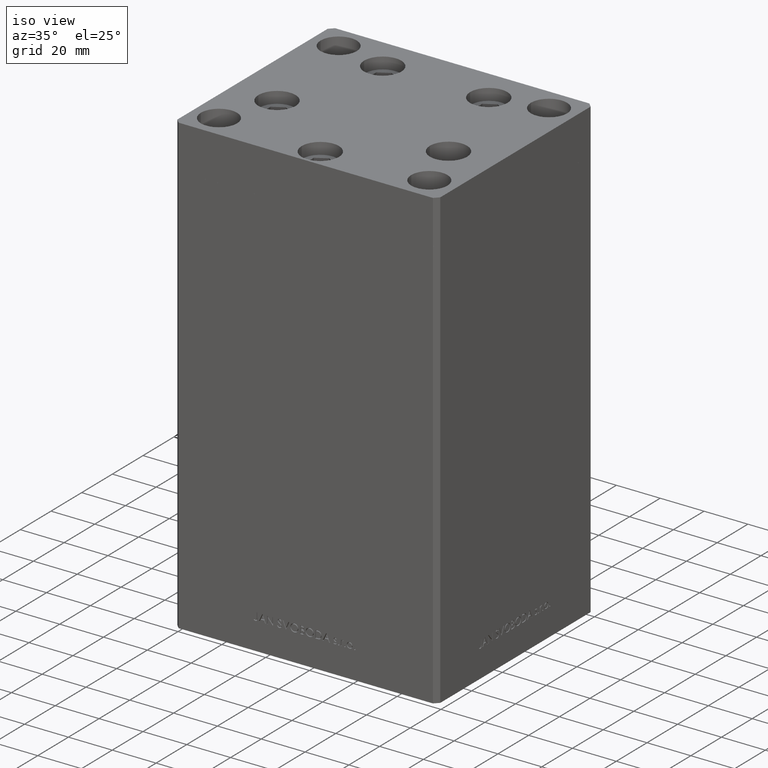
[diagram: clean part render]
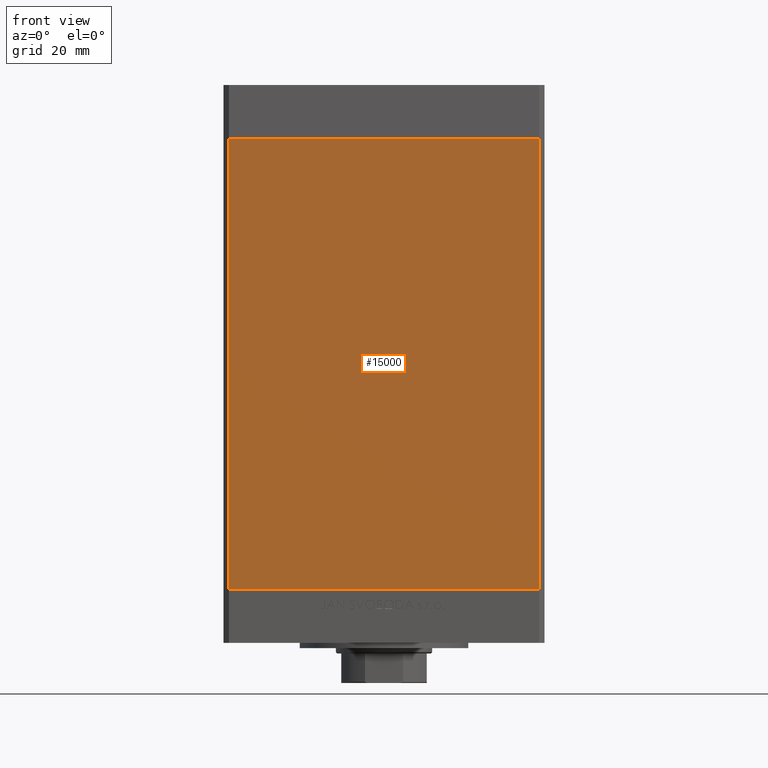
[diagram: tour spotlight — one face highlighted and labeled with its STEP entity id]
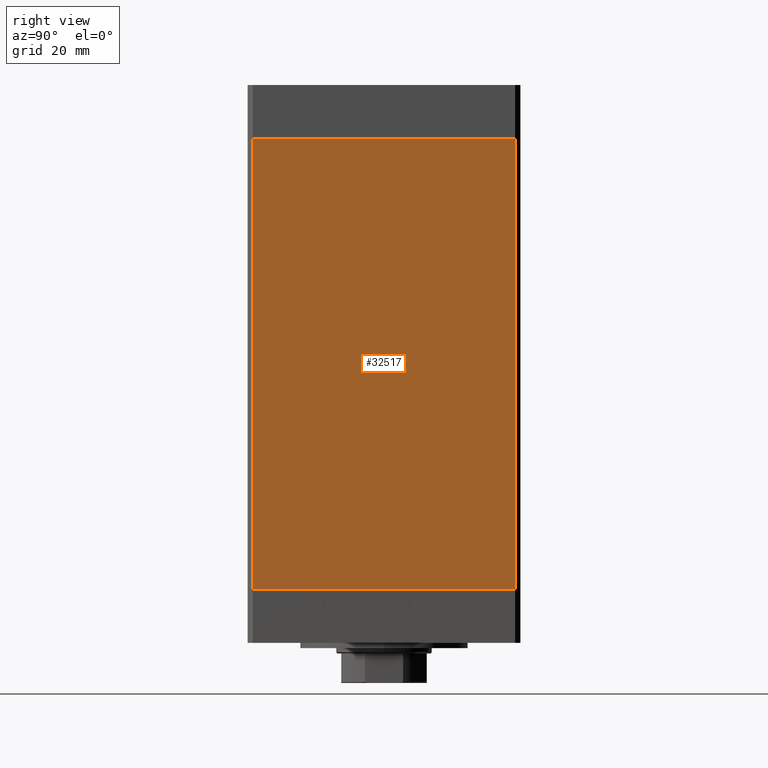
[diagram: tour spotlight — one face highlighted and labeled with its STEP entity id]
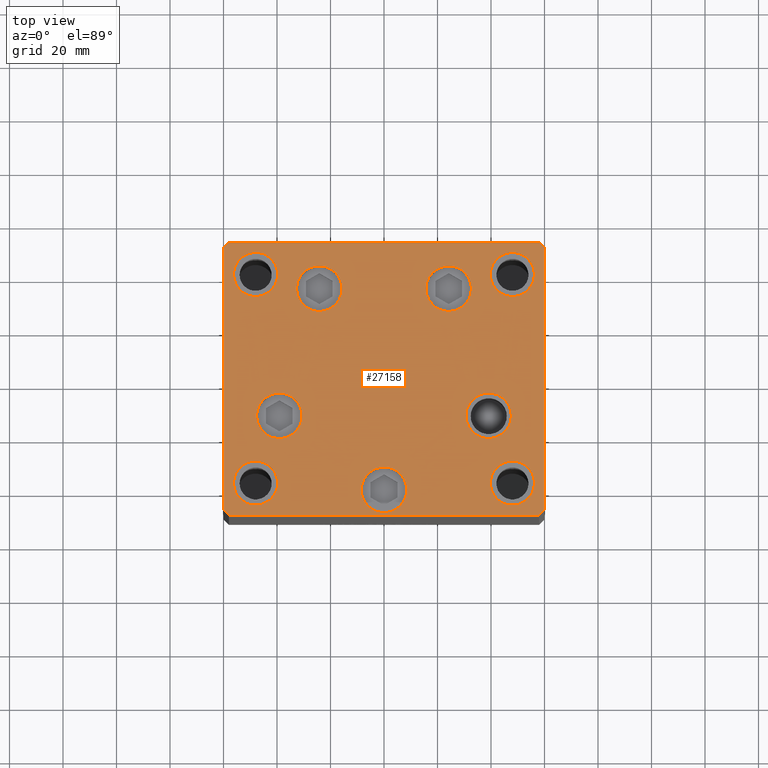
[diagram: tour spotlight — one face highlighted and labeled with its STEP entity id]
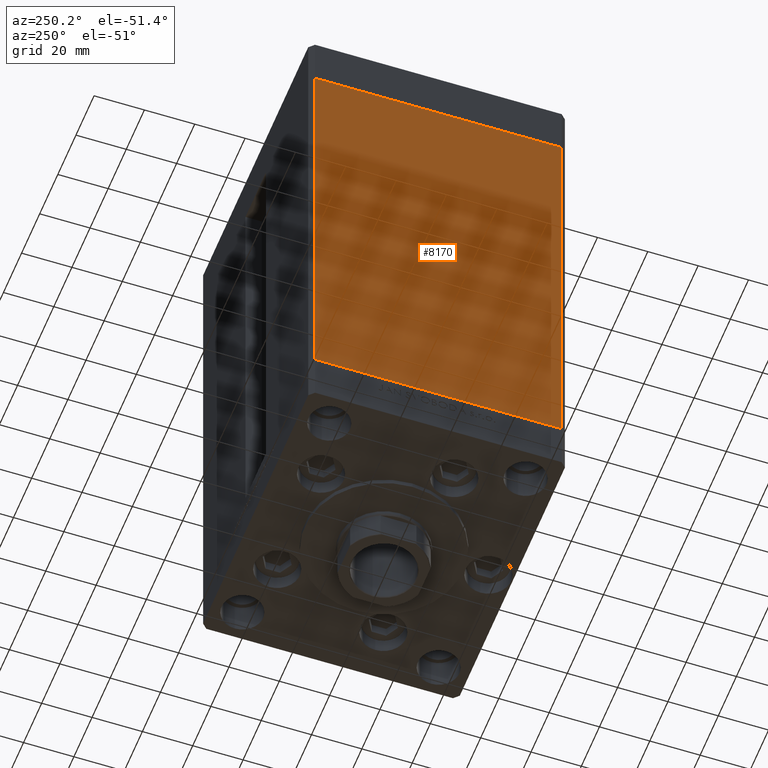
[diagram: tour spotlight — one face highlighted and labeled with its STEP entity id]
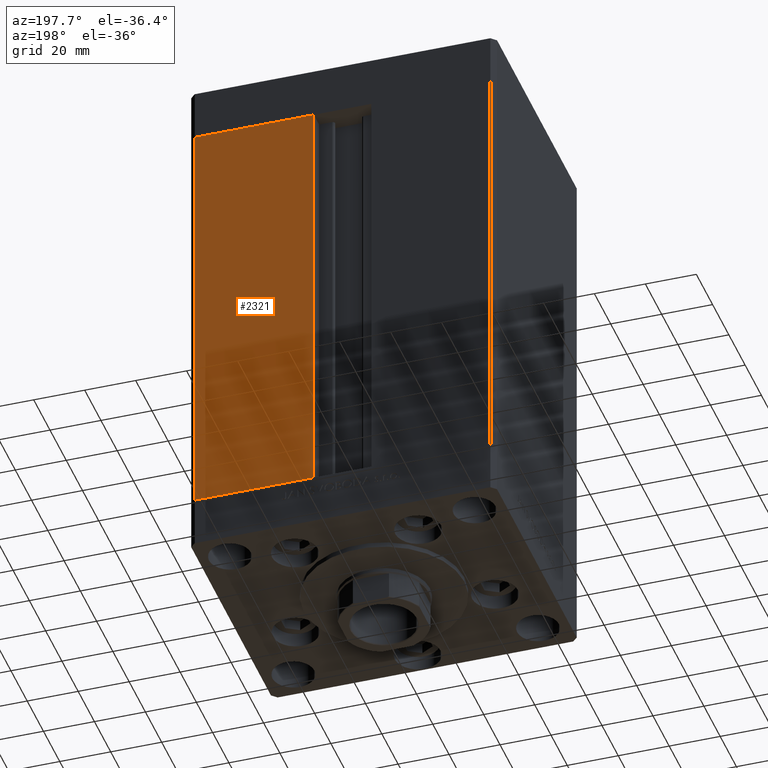
[diagram: tour spotlight — one face highlighted and labeled with its STEP entity id]
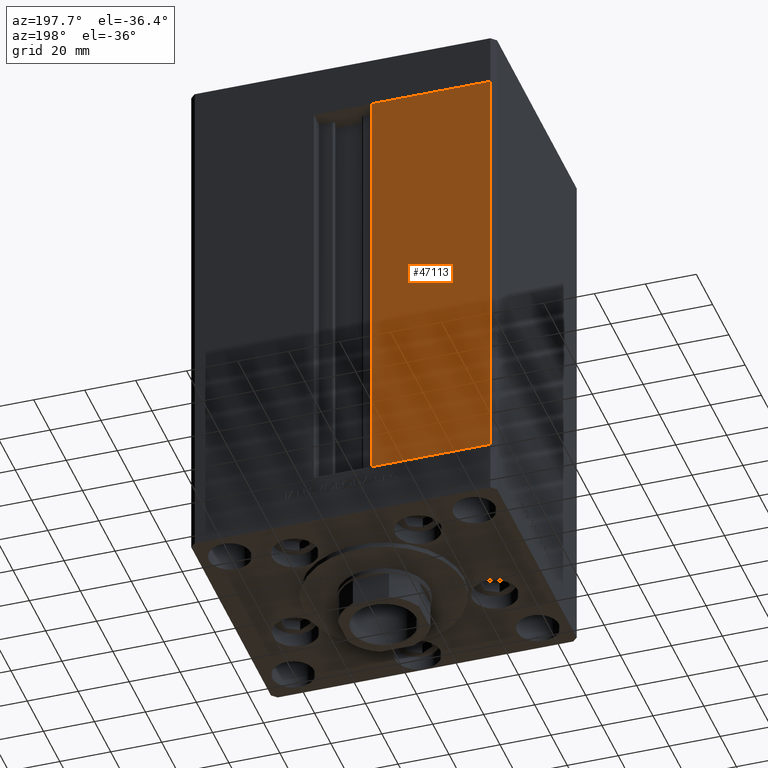
[diagram: tour spotlight — one face highlighted and labeled with its STEP entity id]
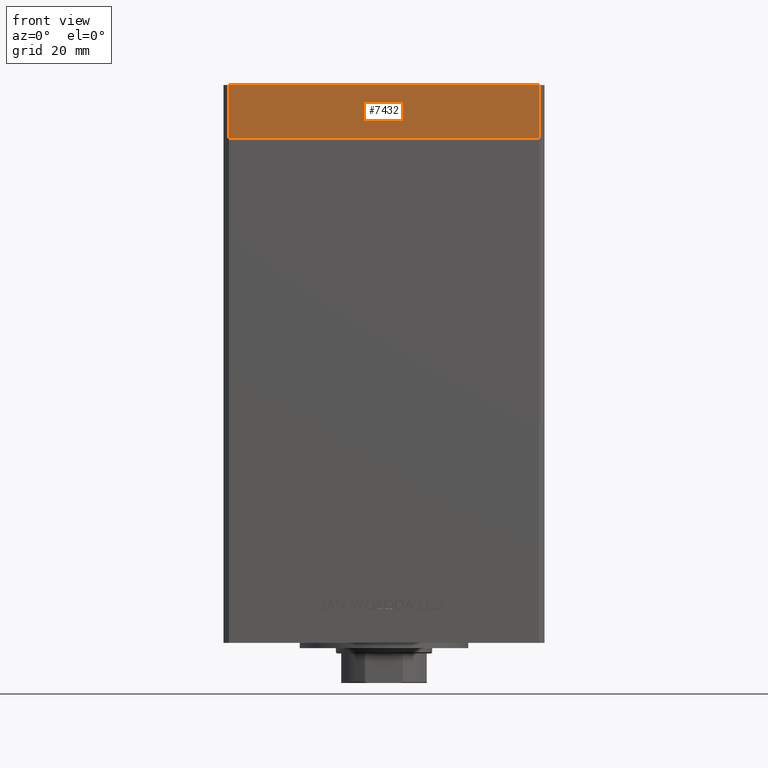
[diagram: tour spotlight — one face highlighted and labeled with its STEP entity id]
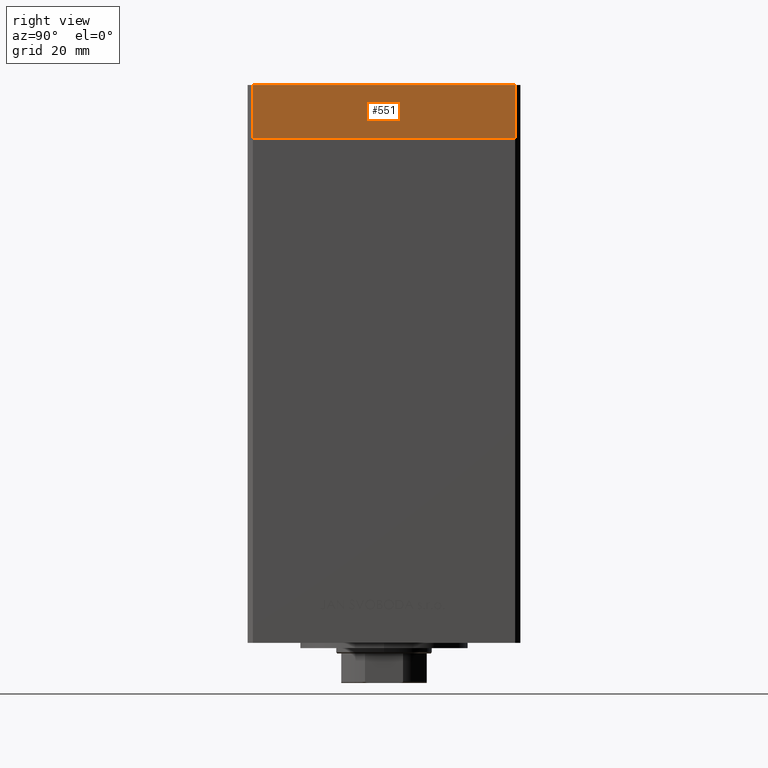
[diagram: tour spotlight — one face highlighted and labeled with its STEP entity id]
A machine part: a face-by-face anatomy tour. The part has 1165 B-rep faces; the first image is the clean iso view, then the 8 largest visible faces are spotlighted one at a time (largest first), each with its STEP entity span.

Face 1 — front view, entity #15000. In plain terms, the highlighted planar face has unit normal (0, 1, 0).
Definition (entity closure, byte-faithful):
#1546 = EDGE_CURVE ( 'NONE', #13663, #22688, #33558, .T. ) ;
#1927 = EDGE_LOOP ( 'NONE', ( #18102, #32888, #40870, #45444 ) ) ;
#3017 = VECTOR ( 'NONE', #46013, 1000.000000000000000 ) ;
#3530 = FACE_OUTER_BOUND ( 'NONE', #1927, .T. ) ;
#8256 = LINE ( 'NONE', #26913, #3017 ) ;
#8895 = VECTOR ( 'NONE', #34272, 1000.000000000000000 ) ;
#9555 = DIRECTION ( 'NONE',  ( 1.000000000000000000, 0.000000000000000000, 0.000000000000000000 ) ) ;
#9831 = VECTOR ( 'NONE', #9555, 1000.000000000000000 ) ;
#10631 = AXIS2_PLACEMENT_3D ( 'NONE', #18954, #18464, #45031 ) ;
#10636 = EDGE_CURVE ( 'NONE', #30562, #13663, #19126, .T. ) ;
#12389 = VECTOR ( 'NONE', #48712, 1000.000000000000000 ) ;
#13663 = VERTEX_POINT ( 'NONE', #33131 ) ;
#15000 = ADVANCED_FACE ( 'NONE', ( #3530 ), #23178, .F. ) ;
#15787 = EDGE_CURVE ( 'NONE', #17224, #22688, #43583, .T. ) ;
#17224 = VERTEX_POINT ( 'NONE', #40546 ) ;
#18102 = ORIENTED_EDGE ( 'NONE', *, *, #15787, .T. ) ;
#18464 = DIRECTION ( 'NONE',  ( 0.000000000000000000, 1.000000000000000000, 0.000000000000000000 ) ) ;
#18954 = CARTESIAN_POINT ( 'NONE',  ( -57.99999999999997868, -51.00000000000000711, 168.5000000000000000 ) ) ;
#19126 = LINE ( 'NONE', #26846, #8895 ) ;
#22688 = VERTEX_POINT ( 'NONE', #39381 ) ;
#22926 = CARTESIAN_POINT ( 'NONE',  ( -57.99999999999997868, -51.00000000000000711, 168.5000000000000000 ) ) ;
#23178 = PLANE ( 'NONE',  #10631 ) ;
#24965 = CARTESIAN_POINT ( 'NONE',  ( -57.99999999999997868, -51.00000000000000711, 0.000000000000000000 ) ) ;
#26846 = CARTESIAN_POINT ( 'NONE',  ( -57.99999999999997868, -51.00000000000000711, 168.5000000000000000 ) ) ;
#26913 = CARTESIAN_POINT ( 'NONE',  ( -57.99999999999997868, -51.00000000000000711, 168.5000000000000000 ) ) ;
#30562 = VERTEX_POINT ( 'NONE', #22926 ) ;
#30623 = EDGE_CURVE ( 'NONE', #30562, #17224, #8256, .T. ) ;
#32888 = ORIENTED_EDGE ( 'NONE', *, *, #1546, .F. ) ;
#33131 = CARTESIAN_POINT ( 'NONE',  ( 57.99999999999997868, -51.00000000000000711, 168.5000000000000000 ) ) ;
#33558 = LINE ( 'NONE', #41497, #12389 ) ;
#34272 = DIRECTION ( 'NONE',  ( 1.000000000000000000, 0.000000000000000000, 0.000000000000000000 ) ) ;
#39381 = CARTESIAN_POINT ( 'NONE',  ( 57.99999999999997868, -51.00000000000000711, 0.000000000000000000 ) ) ;
#40546 = CARTESIAN_POINT ( 'NONE',  ( -57.99999999999997868, -51.00000000000000711, 0.000000000000000000 ) ) ;
#40870 = ORIENTED_EDGE ( 'NONE', *, *, #10636, .F. ) ;
#41497 = CARTESIAN_POINT ( 'NONE',  ( 57.99999999999997868, -51.00000000000000711, 168.5000000000000000 ) ) ;
#43583 = LINE ( 'NONE', #24965, #9831 ) ;
#45031 = DIRECTION ( 'NONE',  ( 0.000000000000000000, -0.000000000000000000, 1.000000000000000000 ) ) ;
#45444 = ORIENTED_EDGE ( 'NONE', *, *, #30623, .T. ) ;
#46013 = DIRECTION ( 'NONE',  ( -0.000000000000000000, -0.000000000000000000, -1.000000000000000000 ) ) ;
#48712 = DIRECTION ( 'NONE',  ( -0.000000000000000000, -0.000000000000000000, -1.000000000000000000 ) ) ;

Face 2 — right view, entity #32517. In plain terms, the highlighted planar face has unit normal (1, -0, 0).
Definition (entity closure, byte-faithful):
#449 = DIRECTION ( 'NONE',  ( -2.832201593431521726E-16, -1.000000000000000000, 0.000000000000000000 ) ) ;
#1815 = VERTEX_POINT ( 'NONE', #33504 ) ;
#2153 = DIRECTION ( 'NONE',  ( -2.832201593431521726E-16, -1.000000000000000000, 0.000000000000000000 ) ) ;
#2171 = DIRECTION ( 'NONE',  ( -0.000000000000000000, -0.000000000000000000, -1.000000000000000000 ) ) ;
#2844 = VERTEX_POINT ( 'NONE', #25160 ) ;
#3022 = CARTESIAN_POINT ( 'NONE',  ( 60.00000000000001421, 49.00000000000000000, 168.5000000000000000 ) ) ;
#4290 = EDGE_CURVE ( 'NONE', #17449, #40359, #23798, .T. ) ;
#5770 = CARTESIAN_POINT ( 'NONE',  ( 59.99999999999998579, -49.00000000000000000, 0.000000000000000000 ) ) ;
#5903 = CARTESIAN_POINT ( 'NONE',  ( 59.99999999999998579, -49.00000000000000000, 168.5000000000000000 ) ) ;
#8783 = CARTESIAN_POINT ( 'NONE',  ( 60.00000000000001421, 49.00000000000000000, 168.5000000000000000 ) ) ;
#10731 = LINE ( 'NONE', #3022, #13330 ) ;
#11397 = LINE ( 'NONE', #48921, #38134 ) ;
#13330 = VECTOR ( 'NONE', #17964, 1000.000000000000000 ) ;
#13501 = ORIENTED_EDGE ( 'NONE', *, *, #19144, .T. ) ;
#13667 = CARTESIAN_POINT ( 'NONE',  ( 60.00000000000001421, 49.00000000000000000, 0.000000000000000000 ) ) ;
#13807 = VECTOR ( 'NONE', #2171, 1000.000000000000000 ) ;
#16492 = PLANE ( 'NONE',  #26040 ) ;
#16735 = DIRECTION ( 'NONE',  ( 1.000000000000000000, -2.832201593431521726E-16, 0.000000000000000000 ) ) ;
#17449 = VERTEX_POINT ( 'NONE', #13667 ) ;
#17473 = EDGE_LOOP ( 'NONE', ( #43202, #20560, #28884, #13501 ) ) ;
#17964 = DIRECTION ( 'NONE',  ( -0.000000000000000000, -0.000000000000000000, -1.000000000000000000 ) ) ;
#19144 = EDGE_CURVE ( 'NONE', #2844, #40359, #28537, .T. ) ;
#20560 = ORIENTED_EDGE ( 'NONE', *, *, #32706, .F. ) ;
#23798 = LINE ( 'NONE', #39923, #45006 ) ;
#25160 = CARTESIAN_POINT ( 'NONE',  ( 59.99999999999998579, -49.00000000000000000, 168.5000000000000000 ) ) ;
#26040 = AXIS2_PLACEMENT_3D ( 'NONE', #8783, #16735, #47038 ) ;
#27922 = FACE_OUTER_BOUND ( 'NONE', #17473, .T. ) ;
#28537 = LINE ( 'NONE', #5903, #13807 ) ;
#28884 = ORIENTED_EDGE ( 'NONE', *, *, #47890, .T. ) ;
#32517 = ADVANCED_FACE ( 'NONE', ( #27922 ), #16492, .T. ) ;
#32706 = EDGE_CURVE ( 'NONE', #1815, #17449, #10731, .T. ) ;
#33504 = CARTESIAN_POINT ( 'NONE',  ( 60.00000000000001421, 49.00000000000000000, 168.5000000000000000 ) ) ;
#38134 = VECTOR ( 'NONE', #449, 1000.000000000000000 ) ;
#39923 = CARTESIAN_POINT ( 'NONE',  ( 60.00000000000001421, 49.00000000000000000, 0.000000000000000000 ) ) ;
#40359 = VERTEX_POINT ( 'NONE', #5770 ) ;
#43202 = ORIENTED_EDGE ( 'NONE', *, *, #4290, .F. ) ;
#45006 = VECTOR ( 'NONE', #2153, 1000.000000000000000 ) ;
#47038 = DIRECTION ( 'NONE',  ( 2.832201593431521726E-16, 1.000000000000000000, 0.000000000000000000 ) ) ;
#47890 = EDGE_CURVE ( 'NONE', #1815, #2844, #11397, .T. ) ;
#48921 = CARTESIAN_POINT ( 'NONE',  ( 60.00000000000001421, 49.00000000000000000, 168.5000000000000000 ) ) ;

Face 3 — top view, entity #27158. In plain terms, the highlighted planar face has unit normal (0, 0, 1).
Definition (entity closure, byte-faithful):
#327 = CARTESIAN_POINT ( 'NONE',  ( -48.00000000000000000, 39.00000000000000000, 0.000000000000000000 ) ) ;
#429 = CARTESIAN_POINT ( 'NONE',  ( -39.12657522565562829, -13.83333333333333925, 0.000000000000000000 ) ) ;
#554 = EDGE_CURVE ( 'NONE', #24148, #46308, #21906, .T. ) ;
#588 = ORIENTED_EDGE ( 'NONE', *, *, #929, .F. ) ;
#732 = CIRCLE ( 'NONE', #45173, 8.500000000000000000 ) ;
#929 = EDGE_CURVE ( 'NONE', #17154, #14910, #40971, .T. ) ;
#987 = EDGE_CURVE ( 'NONE', #8961, #38831, #10483, .T. ) ;
#1550 = DIRECTION ( 'NONE',  ( 1.000000000000000000, 0.000000000000000000, 0.000000000000000000 ) ) ;
#1555 = EDGE_LOOP ( 'NONE', ( #49000, #3449 ) ) ;
#1556 = LINE ( 'NONE', #35600, #2978 ) ;
#1891 = CARTESIAN_POINT ( 'NONE',  ( 59.99999999999994316, 49.00000000000000000, 0.000000000000000000 ) ) ;
#2213 = VERTEX_POINT ( 'NONE', #22519 ) ;
#2378 = CARTESIAN_POINT ( 'NONE',  ( -48.00000000000000000, 39.00000000000000000, 0.000000000000000000 ) ) ;
#2978 = VECTOR ( 'NONE', #47029, 1000.000000000000114 ) ;
#3222 = FACE_OUTER_BOUND ( 'NONE', #33866, .T. ) ;
#3271 = VERTEX_POINT ( 'NONE', #13302 ) ;
#3449 = ORIENTED_EDGE ( 'NONE', *, *, #33112, .T. ) ;
#3716 = EDGE_CURVE ( 'NONE', #11319, #8961, #1556, .T. ) ;
#3721 = DIRECTION ( 'NONE',  ( 0.000000000000000000, -0.000000000000000000, -1.000000000000000000 ) ) ;
#4539 = ORIENTED_EDGE ( 'NONE', *, *, #16953, .T. ) ;
#4625 = CIRCLE ( 'NONE', #48261, 8.499999999999992895 ) ;
#4804 = ORIENTED_EDGE ( 'NONE', *, *, #42558, .T. ) ;
#5037 = CARTESIAN_POINT ( 'NONE',  ( 39.75000000000000711, 38.99999999999999289, 0.000000000000000000 ) ) ;
#5113 = CARTESIAN_POINT ( 'NONE',  ( -39.75000000000000711, -39.00000000000000000, 0.000000000000000000 ) ) ;
#5239 = CARTESIAN_POINT ( 'NONE',  ( -32.69288941894912170, 33.71875000000000000, 0.000000000000000000 ) ) ;
#5327 = CARTESIAN_POINT ( 'NONE',  ( 30.62657522565563184, -13.83333333333332860, 0.000000000000000000 ) ) ;
#5492 = VECTOR ( 'NONE', #14049, 1000.000000000000114 ) ;
#5905 = EDGE_LOOP ( 'NONE', ( #6623, #45217 ) ) ;
#6048 = AXIS2_PLACEMENT_3D ( 'NONE', #11386, #26326, #41450 ) ;
#6322 = AXIS2_PLACEMENT_3D ( 'NONE', #18266, #33418, #48569 ) ;
#6534 = EDGE_CURVE ( 'NONE', #39867, #28114, #27018, .T. ) ;
#6621 = ORIENTED_EDGE ( 'NONE', *, *, #554, .T. ) ;
#6623 = ORIENTED_EDGE ( 'NONE', *, *, #6534, .T. ) ;
#6793 = CIRCLE ( 'NONE', #25861, 8.249999999999992895 ) ;
#6904 = DIRECTION ( 'NONE',  ( 0.000000000000000000, 0.000000000000000000, 1.000000000000000000 ) ) ;
#6965 = FACE_BOUND ( 'NONE', #29604, .T. ) ;
#7008 = CARTESIAN_POINT ( 'NONE',  ( 8.500000000000005329, -41.50000000000000000, 0.000000000000000000 ) ) ;
#7049 = ORIENTED_EDGE ( 'NONE', *, *, #23092, .F. ) ;
#7205 = DIRECTION ( 'NONE',  ( 1.000000000000000000, 0.000000000000000000, 0.000000000000000000 ) ) ;
#7363 = CARTESIAN_POINT ( 'NONE',  ( 56.24999999999999289, -38.99999999999999289, 0.000000000000000000 ) ) ;
#8140 = CARTESIAN_POINT ( 'NONE',  ( -60.00000000000000000, 48.99999999999995737, 0.000000000000000000 ) ) ;
#8190 = CARTESIAN_POINT ( 'NONE',  ( 5.082284216461515748E-15, -41.50000000000000000, 0.000000000000000000 ) ) ;
#8927 = ORIENTED_EDGE ( 'NONE', *, *, #987, .T. ) ;
#8961 = VERTEX_POINT ( 'NONE', #42950 ) ;
#10086 = DIRECTION ( 'NONE',  ( 0.000000000000000000, -0.000000000000000000, -1.000000000000000000 ) ) ;
#10483 = LINE ( 'NONE', #36585, #36196 ) ;
#10686 = DIRECTION ( 'NONE',  ( -7.080503983578803823E-16, 1.000000000000000000, 0.000000000000000000 ) ) ;
#10799 = DIRECTION ( 'NONE',  ( 1.000000000000000000, 0.000000000000000000, 0.000000000000000000 ) ) ;
#10931 = DIRECTION ( 'NONE',  ( 1.000000000000000000, 0.000000000000000000, 0.000000000000000000 ) ) ;
#10952 = VECTOR ( 'NONE', #45358, 1000.000000000000114 ) ;
#10978 = EDGE_LOOP ( 'NONE', ( #16549, #45738 ) ) ;
#10999 = DIRECTION ( 'NONE',  ( 1.000000000000000000, 0.000000000000000000, 0.000000000000000000 ) ) ;
#11061 = CIRCLE ( 'NONE', #6322, 8.500000000000000000 ) ;
#11110 = DIRECTION ( 'NONE',  ( 1.000000000000000000, 0.000000000000000000, 0.000000000000000000 ) ) ;
#11177 = FACE_BOUND ( 'NONE', #21808, .T. ) ;
#11319 = VERTEX_POINT ( 'NONE', #18162 ) ;
#11321 = CARTESIAN_POINT ( 'NONE',  ( 59.99999999999994316, 49.00000000000000000, 0.000000000000000000 ) ) ;
#11386 = CARTESIAN_POINT ( 'NONE',  ( 24.19288941894911460, 33.71875000000000711, 0.000000000000000000 ) ) ;
#11596 = CARTESIAN_POINT ( 'NONE',  ( 5.082284216461515748E-15, -41.50000000000000000, 0.000000000000000000 ) ) ;
#11746 = CARTESIAN_POINT ( 'NONE',  ( -39.75000000000000711, 39.00000000000000000, 0.000000000000000000 ) ) ;
#11850 = DIRECTION ( 'NONE',  ( 0.000000000000000000, -0.000000000000000000, -1.000000000000000000 ) ) ;
#11879 = DIRECTION ( 'NONE',  ( 1.000000000000000000, 0.000000000000000000, 0.000000000000000000 ) ) ;
#11923 = CARTESIAN_POINT ( 'NONE',  ( 48.00000000000000000, 38.99999999999999289, 0.000000000000000000 ) ) ;
#12000 = VERTEX_POINT ( 'NONE', #1891 ) ;
#12683 = EDGE_CURVE ( 'NONE', #32544, #48499, #26431, .T. ) ;
#12737 = DIRECTION ( 'NONE',  ( 1.000000000000000000, 0.000000000000000000, 0.000000000000000000 ) ) ;
#12859 = ORIENTED_EDGE ( 'NONE', *, *, #34803, .T. ) ;
#13231 = DIRECTION ( 'NONE',  ( 0.000000000000000000, 0.000000000000000000, 1.000000000000000000 ) ) ;
#13302 = CARTESIAN_POINT ( 'NONE',  ( -56.24999999999999289, 39.00000000000000000, 0.000000000000000000 ) ) ;
#13655 = ORIENTED_EDGE ( 'NONE', *, *, #34061, .F. ) ;
#14049 = DIRECTION ( 'NONE',  ( -0.7071067811865451302, -0.7071067811865500152, 0.000000000000000000 ) ) ;
#14193 = FACE_BOUND ( 'NONE', #1555, .T. ) ;
#14313 = VECTOR ( 'NONE', #45397, 1000.000000000000000 ) ;
#14545 = CARTESIAN_POINT ( 'NONE',  ( 15.69288941894910927, 33.71875000000000711, 0.000000000000000000 ) ) ;
#14639 = CIRCLE ( 'NONE', #15463, 8.500000000000000000 ) ;
#14910 = VERTEX_POINT ( 'NONE', #5113 ) ;
#14923 = DIRECTION ( 'NONE',  ( 0.000000000000000000, 0.000000000000000000, 1.000000000000000000 ) ) ;
#15071 = LINE ( 'NONE', #19285, #10952 ) ;
#15073 = ORIENTED_EDGE ( 'NONE', *, *, #33358, .T. ) ;
#15117 = AXIS2_PLACEMENT_3D ( 'NONE', #26956, #42089, #42815 ) ;
#15119 = VERTEX_POINT ( 'NONE', #5239 ) ;
#15463 = AXIS2_PLACEMENT_3D ( 'NONE', #37768, #3721, #27884 ) ;
#15539 = CARTESIAN_POINT ( 'NONE',  ( -15.69288941894911993, 33.71875000000000000, 0.000000000000000000 ) ) ;
#16235 = EDGE_CURVE ( 'NONE', #24456, #20328, #47004, .T. ) ;
#16504 = AXIS2_PLACEMENT_3D ( 'NONE', #327, #30657, #45554 ) ;
#16549 = ORIENTED_EDGE ( 'NONE', *, *, #37235, .F. ) ;
#16721 = ORIENTED_EDGE ( 'NONE', *, *, #36871, .T. ) ;
#16723 = CARTESIAN_POINT ( 'NONE',  ( -48.00000000000000000, -39.00000000000000000, 0.000000000000000000 ) ) ;
#16953 = EDGE_CURVE ( 'NONE', #12000, #24456, #48842, .T. ) ;
#17065 = CARTESIAN_POINT ( 'NONE',  ( 39.12657522565562829, -13.83333333333332860, 0.000000000000000000 ) ) ;
#17154 = VERTEX_POINT ( 'NONE', #21908 ) ;
#17316 = DIRECTION ( 'NONE',  ( 1.000000000000000000, 0.000000000000000000, 0.000000000000000000 ) ) ;
#17324 = ORIENTED_EDGE ( 'NONE', *, *, #45237, .T. ) ;
#17353 = AXIS2_PLACEMENT_3D ( 'NONE', #8190, #23349, #7205 ) ;
#17467 = AXIS2_PLACEMENT_3D ( 'NONE', #49015, #34344, #10999 ) ;
#17801 = VERTEX_POINT ( 'NONE', #7363 ) ;
#18162 = CARTESIAN_POINT ( 'NONE',  ( -60.00000000000000000, -49.00000000000000000, 0.000000000000000000 ) ) ;
#18163 = FACE_BOUND ( 'NONE', #48111, .T. ) ;
#18266 = CARTESIAN_POINT ( 'NONE',  ( -24.19288941894912170, 33.71875000000000000, 0.000000000000000000 ) ) ;
#18781 = VECTOR ( 'NONE', #10686, 1000.000000000000000 ) ;
#19285 = CARTESIAN_POINT ( 'NONE',  ( 58.00000000000000000, -51.00000000000000711, 0.000000000000000000 ) ) ;
#19938 = DIRECTION ( 'NONE',  ( -1.000000000000000000, -2.392722035830079958E-16, 0.000000000000000000 ) ) ;
#20328 = VERTEX_POINT ( 'NONE', #25496 ) ;
#21122 = EDGE_CURVE ( 'NONE', #46308, #24148, #14639, .T. ) ;
#21443 = CIRCLE ( 'NONE', #17467, 8.500000000000000000 ) ;
#21808 = EDGE_LOOP ( 'NONE', ( #23690, #588 ) ) ;
#21884 = ORIENTED_EDGE ( 'NONE', *, *, #27051, .T. ) ;
#21906 = CIRCLE ( 'NONE', #6048, 8.500000000000000000 ) ;
#21908 = CARTESIAN_POINT ( 'NONE',  ( -56.24999999999999289, -39.00000000000000000, 0.000000000000000000 ) ) ;
#21909 = ORIENTED_EDGE ( 'NONE', *, *, #12683, .F. ) ;
#21990 = CIRCLE ( 'NONE', #41009, 8.249999999999992895 ) ;
#22011 = CIRCLE ( 'NONE', #44232, 8.500000000000000000 ) ;
#22519 = CARTESIAN_POINT ( 'NONE',  ( -30.62657522565562829, -13.83333333333333748, 0.000000000000000000 ) ) ;
#22552 = CARTESIAN_POINT ( 'NONE',  ( -48.00000000000000000, -39.00000000000000000, 0.000000000000000000 ) ) ;
#22622 = CARTESIAN_POINT ( 'NONE',  ( 58.00000000000000000, -51.00000000000000711, 0.000000000000000000 ) ) ;
#22741 = CARTESIAN_POINT ( 'NONE',  ( -60.00000000000000000, 48.99999999999995737, 0.000000000000000000 ) ) ;
#22869 = ORIENTED_EDGE ( 'NONE', *, *, #21122, .T. ) ;
#23092 = EDGE_CURVE ( 'NONE', #48499, #32544, #6793, .T. ) ;
#23349 = DIRECTION ( 'NONE',  ( 0.000000000000000000, -0.000000000000000000, -1.000000000000000000 ) ) ;
#23690 = ORIENTED_EDGE ( 'NONE', *, *, #26246, .F. ) ;
#23774 = DIRECTION ( 'NONE',  ( 1.000000000000000000, 0.000000000000000000, 0.000000000000000000 ) ) ;
#24148 = VERTEX_POINT ( 'NONE', #41443 ) ;
#24456 = VERTEX_POINT ( 'NONE', #34186 ) ;
#25129 = LINE ( 'NONE', #40278, #18781 ) ;
#25132 = CIRCLE ( 'NONE', #43340, 8.500000000000000000 ) ;
#25496 = CARTESIAN_POINT ( 'NONE',  ( -57.99999999999999289, 50.99999999999997868, 0.000000000000000000 ) ) ;
#25810 = CARTESIAN_POINT ( 'NONE',  ( 48.00000000000000000, -38.99999999999999289, 0.000000000000000000 ) ) ;
#25861 = AXIS2_PLACEMENT_3D ( 'NONE', #27907, #35106, #1550 ) ;
#26111 = DIRECTION ( 'NONE',  ( 1.000000000000000000, 0.000000000000000000, 0.000000000000000000 ) ) ;
#26246 = EDGE_CURVE ( 'NONE', #14910, #17154, #21990, .T. ) ;
#26316 = ORIENTED_EDGE ( 'NONE', *, *, #3716, .T. ) ;
#26326 = DIRECTION ( 'NONE',  ( 0.000000000000000000, -0.000000000000000000, -1.000000000000000000 ) ) ;
#26431 = CIRCLE ( 'NONE', #36740, 8.249999999999992895 ) ;
#26840 = CARTESIAN_POINT ( 'NONE',  ( 56.24999999999999289, 38.99999999999999289, 0.000000000000000000 ) ) ;
#26949 = VERTEX_POINT ( 'NONE', #43756 ) ;
#26956 = CARTESIAN_POINT ( 'NONE',  ( 39.12657522565562829, -13.83333333333332860, 0.000000000000000000 ) ) ;
#27018 = CIRCLE ( 'NONE', #15117, 8.499999999999992895 ) ;
#27051 = EDGE_CURVE ( 'NONE', #42359, #12000, #25129, .T. ) ;
#27158 = ADVANCED_FACE ( 'NONE', ( #40995, #48463, #37512, #14193, #18163, #34041, #11177, #29587, #6965, #3222 ), #48699, .T. ) ;
#27620 = DIRECTION ( 'NONE',  ( 1.000000000000000000, 0.000000000000000000, 0.000000000000000000 ) ) ;
#27709 = ORIENTED_EDGE ( 'NONE', *, *, #32860, .F. ) ;
#27884 = DIRECTION ( 'NONE',  ( 1.000000000000000000, 0.000000000000000000, 0.000000000000000000 ) ) ;
#27907 = CARTESIAN_POINT ( 'NONE',  ( 48.00000000000000000, 38.99999999999999289, 0.000000000000000000 ) ) ;
#28114 = VERTEX_POINT ( 'NONE', #33309 ) ;
#28137 = CARTESIAN_POINT ( 'NONE',  ( 57.99999999999993605, 51.00000000000000711, 0.000000000000000000 ) ) ;
#29587 = FACE_BOUND ( 'NONE', #10978, .T. ) ;
#29604 = EDGE_LOOP ( 'NONE', ( #7049, #21909 ) ) ;
#29750 = EDGE_CURVE ( 'NONE', #43774, #43671, #30812, .T. ) ;
#29822 = CARTESIAN_POINT ( 'NONE',  ( 0.000000000000000000, 0.000000000000000000, 0.000000000000000000 ) ) ;
#29873 = AXIS2_PLACEMENT_3D ( 'NONE', #25810, #6904, #47673 ) ;
#30199 = EDGE_CURVE ( 'NONE', #28114, #39867, #4625, .T. ) ;
#30242 = EDGE_LOOP ( 'NONE', ( #22869, #6621 ) ) ;
#30657 = DIRECTION ( 'NONE',  ( 0.000000000000000000, 0.000000000000000000, 1.000000000000000000 ) ) ;
#30766 = DIRECTION ( 'NONE',  ( 0.000000000000000000, -0.000000000000000000, -1.000000000000000000 ) ) ;
#30812 = CIRCLE ( 'NONE', #17353, 8.500000000000000000 ) ;
#31100 = CARTESIAN_POINT ( 'NONE',  ( 48.00000000000000000, -38.99999999999999289, 0.000000000000000000 ) ) ;
#31484 = AXIS2_PLACEMENT_3D ( 'NONE', #29822, #44958, #26111 ) ;
#31540 = CIRCLE ( 'NONE', #44157, 8.249999999999992895 ) ;
#32071 = DIRECTION ( 'NONE',  ( 0.000000000000000000, 0.000000000000000000, 1.000000000000000000 ) ) ;
#32544 = VERTEX_POINT ( 'NONE', #5037 ) ;
#32860 = EDGE_CURVE ( 'NONE', #26949, #17801, #41080, .T. ) ;
#33034 = DIRECTION ( 'NONE',  ( 0.000000000000000000, -0.000000000000000000, -1.000000000000000000 ) ) ;
#33112 = EDGE_CURVE ( 'NONE', #43671, #43774, #732, .T. ) ;
#33309 = CARTESIAN_POINT ( 'NONE',  ( 47.62657522565562118, -13.83333333333332682, 0.000000000000000000 ) ) ;
#33358 = EDGE_CURVE ( 'NONE', #15119, #38309, #11061, .T. ) ;
#33418 = DIRECTION ( 'NONE',  ( 0.000000000000000000, -0.000000000000000000, -1.000000000000000000 ) ) ;
#33866 = EDGE_LOOP ( 'NONE', ( #26316, #8927, #4804, #21884, #4539, #49116, #17324, #34169 ) ) ;
#34041 = FACE_BOUND ( 'NONE', #47871, .T. ) ;
#34061 = EDGE_CURVE ( 'NONE', #17801, #26949, #40965, .T. ) ;
#34169 = ORIENTED_EDGE ( 'NONE', *, *, #46879, .T. ) ;
#34186 = CARTESIAN_POINT ( 'NONE',  ( 57.99999999999993605, 51.00000000000000711, 0.000000000000000000 ) ) ;
#34344 = DIRECTION ( 'NONE',  ( 0.000000000000000000, -0.000000000000000000, -1.000000000000000000 ) ) ;
#34471 = VECTOR ( 'NONE', #44861, 1000.000000000000000 ) ;
#34630 = AXIS2_PLACEMENT_3D ( 'NONE', #16723, #13231, #12737 ) ;
#34665 = ORIENTED_EDGE ( 'NONE', *, *, #47617, .T. ) ;
#34803 = EDGE_CURVE ( 'NONE', #45529, #2213, #25132, .T. ) ;
#35106 = DIRECTION ( 'NONE',  ( 0.000000000000000000, 0.000000000000000000, 1.000000000000000000 ) ) ;
#35600 = CARTESIAN_POINT ( 'NONE',  ( -60.00000000000000000, -49.00000000000000000, 0.000000000000000000 ) ) ;
#36196 = VECTOR ( 'NONE', #44517, 1000.000000000000000 ) ;
#36279 = CARTESIAN_POINT ( 'NONE',  ( -39.12657522565562829, -13.83333333333333925, 0.000000000000000000 ) ) ;
#36355 = EDGE_LOOP ( 'NONE', ( #15073, #34665 ) ) ;
#36585 = CARTESIAN_POINT ( 'NONE',  ( -57.99999999999997868, -51.00000000000001421, 0.000000000000000000 ) ) ;
#36740 = AXIS2_PLACEMENT_3D ( 'NONE', #11923, #14923, #10931 ) ;
#36871 = EDGE_CURVE ( 'NONE', #2213, #45529, #22011, .T. ) ;
#37235 = EDGE_CURVE ( 'NONE', #39503, #3271, #31540, .T. ) ;
#37512 = FACE_BOUND ( 'NONE', #5905, .T. ) ;
#37768 = CARTESIAN_POINT ( 'NONE',  ( 24.19288941894911460, 33.71875000000000711, 0.000000000000000000 ) ) ;
#38046 = CARTESIAN_POINT ( 'NONE',  ( -8.499999999999994671, -41.50000000000000000, 0.000000000000000000 ) ) ;
#38056 = AXIS2_PLACEMENT_3D ( 'NONE', #31100, #32071, #27620 ) ;
#38296 = VERTEX_POINT ( 'NONE', #22741 ) ;
#38309 = VERTEX_POINT ( 'NONE', #15539 ) ;
#38831 = VERTEX_POINT ( 'NONE', #22622 ) ;
#39476 = CIRCLE ( 'NONE', #16504, 8.249999999999992895 ) ;
#39503 = VERTEX_POINT ( 'NONE', #11746 ) ;
#39867 = VERTEX_POINT ( 'NONE', #5327 ) ;
#40278 = CARTESIAN_POINT ( 'NONE',  ( 60.00000000000001421, -48.99999999999999289, 0.000000000000000000 ) ) ;
#40965 = CIRCLE ( 'NONE', #29873, 8.249999999999992895 ) ;
#40971 = CIRCLE ( 'NONE', #34630, 8.249999999999992895 ) ;
#40995 = FACE_BOUND ( 'NONE', #36355, .T. ) ;
#41009 = AXIS2_PLACEMENT_3D ( 'NONE', #22552, #45141, #11110 ) ;
#41080 = CIRCLE ( 'NONE', #38056, 8.249999999999992895 ) ;
#41107 = EDGE_CURVE ( 'NONE', #3271, #39503, #39476, .T. ) ;
#41443 = CARTESIAN_POINT ( 'NONE',  ( 32.69288941894911460, 33.71875000000000711, 0.000000000000000000 ) ) ;
#41450 = DIRECTION ( 'NONE',  ( 1.000000000000000000, 0.000000000000000000, 0.000000000000000000 ) ) ;
#41669 = LINE ( 'NONE', #8140, #14313 ) ;
#42089 = DIRECTION ( 'NONE',  ( 0.000000000000000000, -0.000000000000000000, -1.000000000000000000 ) ) ;
#42359 = VERTEX_POINT ( 'NONE', #45944 ) ;
#42558 = EDGE_CURVE ( 'NONE', #38831, #42359, #15071, .T. ) ;
#42759 = CARTESIAN_POINT ( 'NONE',  ( -47.62657522565562829, -13.83333333333333925, 0.000000000000000000 ) ) ;
#42815 = DIRECTION ( 'NONE',  ( 1.000000000000000000, 0.000000000000000000, 0.000000000000000000 ) ) ;
#42950 = CARTESIAN_POINT ( 'NONE',  ( -57.99999999999997868, -51.00000000000001421, 0.000000000000000000 ) ) ;
#43340 = AXIS2_PLACEMENT_3D ( 'NONE', #429, #30766, #11879 ) ;
#43671 = VERTEX_POINT ( 'NONE', #7008 ) ;
#43756 = CARTESIAN_POINT ( 'NONE',  ( 39.75000000000000711, -38.99999999999999289, 0.000000000000000000 ) ) ;
#43774 = VERTEX_POINT ( 'NONE', #38046 ) ;
#43971 = VECTOR ( 'NONE', #19938, 1000.000000000000000 ) ;
#44157 = AXIS2_PLACEMENT_3D ( 'NONE', #2378, #44362, #10799 ) ;
#44232 = AXIS2_PLACEMENT_3D ( 'NONE', #36279, #33034, #48193 ) ;
#44348 = CARTESIAN_POINT ( 'NONE',  ( -57.99999999999999289, 50.99999999999997868, 0.000000000000000000 ) ) ;
#44362 = DIRECTION ( 'NONE',  ( 0.000000000000000000, 0.000000000000000000, 1.000000000000000000 ) ) ;
#44517 = DIRECTION ( 'NONE',  ( 1.000000000000000000, 1.196361017915039486E-16, 0.000000000000000000 ) ) ;
#44861 = DIRECTION ( 'NONE',  ( -0.7071067811865487940, 0.7071067811865463515, 0.000000000000000000 ) ) ;
#44958 = DIRECTION ( 'NONE',  ( -0.000000000000000000, 0.000000000000000000, 1.000000000000000000 ) ) ;
#45141 = DIRECTION ( 'NONE',  ( 0.000000000000000000, 0.000000000000000000, 1.000000000000000000 ) ) ;
#45173 = AXIS2_PLACEMENT_3D ( 'NONE', #11596, #11850, #23774 ) ;
#45217 = ORIENTED_EDGE ( 'NONE', *, *, #30199, .T. ) ;
#45237 = EDGE_CURVE ( 'NONE', #20328, #38296, #48075, .T. ) ;
#45358 = DIRECTION ( 'NONE',  ( 0.7071067811865474617, 0.7071067811865474617, 0.000000000000000000 ) ) ;
#45397 = DIRECTION ( 'NONE',  ( 0.000000000000000000, -1.000000000000000000, 0.000000000000000000 ) ) ;
#45529 = VERTEX_POINT ( 'NONE', #42759 ) ;
#45554 = DIRECTION ( 'NONE',  ( 1.000000000000000000, 0.000000000000000000, 0.000000000000000000 ) ) ;
#45738 = ORIENTED_EDGE ( 'NONE', *, *, #41107, .F. ) ;
#45944 = CARTESIAN_POINT ( 'NONE',  ( 60.00000000000001421, -48.99999999999999289, 0.000000000000000000 ) ) ;
#46308 = VERTEX_POINT ( 'NONE', #14545 ) ;
#46879 = EDGE_CURVE ( 'NONE', #38296, #11319, #41669, .T. ) ;
#47004 = LINE ( 'NONE', #28137, #43971 ) ;
#47029 = DIRECTION ( 'NONE',  ( 0.7071067811865474617, -0.7071067811865474617, 0.000000000000000000 ) ) ;
#47617 = EDGE_CURVE ( 'NONE', #38309, #15119, #21443, .T. ) ;
#47673 = DIRECTION ( 'NONE',  ( 1.000000000000000000, 0.000000000000000000, 0.000000000000000000 ) ) ;
#47871 = EDGE_LOOP ( 'NONE', ( #13655, #27709 ) ) ;
#48075 = LINE ( 'NONE', #44348, #5492 ) ;
#48111 = EDGE_LOOP ( 'NONE', ( #12859, #16721 ) ) ;
#48193 = DIRECTION ( 'NONE',  ( 1.000000000000000000, 0.000000000000000000, 0.000000000000000000 ) ) ;
#48261 = AXIS2_PLACEMENT_3D ( 'NONE', #17065, #10086, #17316 ) ;
#48463 = FACE_BOUND ( 'NONE', #30242, .T. ) ;
#48499 = VERTEX_POINT ( 'NONE', #26840 ) ;
#48569 = DIRECTION ( 'NONE',  ( 1.000000000000000000, 0.000000000000000000, 0.000000000000000000 ) ) ;
#48699 = PLANE ( 'NONE',  #31484 ) ;
#48842 = LINE ( 'NONE', #11321, #34471 ) ;
#49000 = ORIENTED_EDGE ( 'NONE', *, *, #29750, .T. ) ;
#49015 = CARTESIAN_POINT ( 'NONE',  ( -24.19288941894912170, 33.71875000000000000, 0.000000000000000000 ) ) ;
#49116 = ORIENTED_EDGE ( 'NONE', *, *, #16235, .T. ) ;

Face 4 — auxiliary view, entity #8170. In plain terms, the highlighted planar face has unit normal (1, 0, 0).
Definition (entity closure, byte-faithful):
#889 = VERTEX_POINT ( 'NONE', #11768 ) ;
#2194 = DIRECTION ( 'NONE',  ( -2.832201593431521726E-16, 1.000000000000000000, 0.000000000000000000 ) ) ;
#2474 = VECTOR ( 'NONE', #48213, 1000.000000000000000 ) ;
#2731 = ORIENTED_EDGE ( 'NONE', *, *, #2745, .F. ) ;
#2745 = EDGE_CURVE ( 'NONE', #28462, #3307, #37053, .T. ) ;
#3307 = VERTEX_POINT ( 'NONE', #21261 ) ;
#4030 = VECTOR ( 'NONE', #10319, 1000.000000000000000 ) ;
#5860 = LINE ( 'NONE', #47353, #4030 ) ;
#6139 = VERTEX_POINT ( 'NONE', #19050 ) ;
#8170 = ADVANCED_FACE ( 'NONE', ( #36482 ), #43685, .F. ) ;
#8665 = EDGE_CURVE ( 'NONE', #28462, #889, #17911, .T. ) ;
#10319 = DIRECTION ( 'NONE',  ( -0.000000000000000000, -0.000000000000000000, -1.000000000000000000 ) ) ;
#10661 = VECTOR ( 'NONE', #44791, 1000.000000000000000 ) ;
#11768 = CARTESIAN_POINT ( 'NONE',  ( -60.00000000000001421, 49.00000000000000000, 0.000000000000000000 ) ) ;
#16021 = EDGE_CURVE ( 'NONE', #889, #6139, #29422, .T. ) ;
#17230 = VECTOR ( 'NONE', #21677, 1000.000000000000000 ) ;
#17911 = LINE ( 'NONE', #32816, #2474 ) ;
#19050 = CARTESIAN_POINT ( 'NONE',  ( -59.99999999999998579, -49.00000000000000000, 0.000000000000000000 ) ) ;
#21261 = CARTESIAN_POINT ( 'NONE',  ( -59.99999999999998579, -49.00000000000000000, 168.5000000000000000 ) ) ;
#21677 = DIRECTION ( 'NONE',  ( 2.832201593431521726E-16, -1.000000000000000000, 0.000000000000000000 ) ) ;
#23496 = EDGE_LOOP ( 'NONE', ( #32441, #24669, #2731, #35221 ) ) ;
#24669 = ORIENTED_EDGE ( 'NONE', *, *, #49049, .F. ) ;
#25525 = AXIS2_PLACEMENT_3D ( 'NONE', #47667, #40458, #2194 ) ;
#25655 = CARTESIAN_POINT ( 'NONE',  ( -60.00000000000001421, 49.00000000000000000, 168.5000000000000000 ) ) ;
#28462 = VERTEX_POINT ( 'NONE', #29771 ) ;
#29422 = LINE ( 'NONE', #29895, #10661 ) ;
#29771 = CARTESIAN_POINT ( 'NONE',  ( -60.00000000000001421, 49.00000000000000000, 168.5000000000000000 ) ) ;
#29895 = CARTESIAN_POINT ( 'NONE',  ( -60.00000000000001421, 49.00000000000000000, 0.000000000000000000 ) ) ;
#32441 = ORIENTED_EDGE ( 'NONE', *, *, #16021, .T. ) ;
#32816 = CARTESIAN_POINT ( 'NONE',  ( -60.00000000000001421, 49.00000000000000000, 168.5000000000000000 ) ) ;
#35221 = ORIENTED_EDGE ( 'NONE', *, *, #8665, .T. ) ;
#36482 = FACE_OUTER_BOUND ( 'NONE', #23496, .T. ) ;
#37053 = LINE ( 'NONE', #25655, #17230 ) ;
#40458 = DIRECTION ( 'NONE',  ( 1.000000000000000000, 2.832201593431521726E-16, -0.000000000000000000 ) ) ;
#43685 = PLANE ( 'NONE',  #25525 ) ;
#44791 = DIRECTION ( 'NONE',  ( 2.832201593431521726E-16, -1.000000000000000000, 0.000000000000000000 ) ) ;
#47353 = CARTESIAN_POINT ( 'NONE',  ( -59.99999999999998579, -49.00000000000000000, 168.5000000000000000 ) ) ;
#47667 = CARTESIAN_POINT ( 'NONE',  ( -60.00000000000001421, 49.00000000000000000, 168.5000000000000000 ) ) ;
#48213 = DIRECTION ( 'NONE',  ( -0.000000000000000000, -0.000000000000000000, -1.000000000000000000 ) ) ;
#49049 = EDGE_CURVE ( 'NONE', #3307, #6139, #5860, .T. ) ;

Face 5 — auxiliary view, entity #2321. In plain terms, the highlighted planar face has unit normal (-0, -1, 0).
Definition (entity closure, byte-faithful):
#1351 = DIRECTION ( 'NONE',  ( 1.000000000000000000, -1.484255380514915423E-16, 0.000000000000000000 ) ) ;
#1709 = LINE ( 'NONE', #17619, #23615 ) ;
#2321 = ADVANCED_FACE ( 'NONE', ( #27721 ), #8587, .F. ) ;
#4672 = LINE ( 'NONE', #27075, #10894 ) ;
#5329 = VERTEX_POINT ( 'NONE', #45607 ) ;
#7514 = CARTESIAN_POINT ( 'NONE',  ( 57.99999999999999289, 51.00000000000000711, 168.5000000000000000 ) ) ;
#8191 = VECTOR ( 'NONE', #26561, 1000.000000000000000 ) ;
#8587 = PLANE ( 'NONE',  #21163 ) ;
#10159 = DIRECTION ( 'NONE',  ( -0.000000000000000000, -0.000000000000000000, 1.000000000000000000 ) ) ;
#10894 = VECTOR ( 'NONE', #38725, 1000.000000000000000 ) ;
#11381 = CARTESIAN_POINT ( 'NONE',  ( -11.25000000000000178, 51.00000000000000000, 168.5000000000000000 ) ) ;
#12124 = VERTEX_POINT ( 'NONE', #7514 ) ;
#12474 = VERTEX_POINT ( 'NONE', #48343 ) ;
#16334 = EDGE_CURVE ( 'NONE', #12124, #40164, #20676, .T. ) ;
#16949 = CARTESIAN_POINT ( 'NONE',  ( 57.99999999999999289, 51.00000000000000711, 168.5000000000000000 ) ) ;
#17619 = CARTESIAN_POINT ( 'NONE',  ( 11.25000000000000178, 51.00000000000000000, 0.000000000000000000 ) ) ;
#17896 = ORIENTED_EDGE ( 'NONE', *, *, #31743, .T. ) ;
#18191 = EDGE_CURVE ( 'NONE', #12474, #12124, #30277, .T. ) ;
#19716 = CARTESIAN_POINT ( 'NONE',  ( 57.99999999999999289, 51.00000000000000711, 0.000000000000000000 ) ) ;
#20434 = ORIENTED_EDGE ( 'NONE', *, *, #16334, .T. ) ;
#20676 = LINE ( 'NONE', #16949, #36846 ) ;
#21163 = AXIS2_PLACEMENT_3D ( 'NONE', #30706, #35393, #1351 ) ;
#23615 = VECTOR ( 'NONE', #10159, 1000.000000000000000 ) ;
#26561 = DIRECTION ( 'NONE',  ( 1.000000000000000000, 0.000000000000000000, 0.000000000000000000 ) ) ;
#27075 = CARTESIAN_POINT ( 'NONE',  ( -11.25000000000000178, 51.00000000000000000, 0.000000000000000000 ) ) ;
#27667 = ORIENTED_EDGE ( 'NONE', *, *, #28333, .T. ) ;
#27721 = FACE_OUTER_BOUND ( 'NONE', #40473, .T. ) ;
#28103 = ORIENTED_EDGE ( 'NONE', *, *, #18191, .T. ) ;
#28333 = EDGE_CURVE ( 'NONE', #5329, #12474, #1709, .T. ) ;
#30277 = LINE ( 'NONE', #11381, #8191 ) ;
#30706 = CARTESIAN_POINT ( 'NONE',  ( -11.25000000000000178, 51.00000000000000000, 168.5000000000000000 ) ) ;
#31743 = EDGE_CURVE ( 'NONE', #40164, #5329, #4672, .T. ) ;
#35393 = DIRECTION ( 'NONE',  ( -1.484255380514915423E-16, -1.000000000000000000, 0.000000000000000000 ) ) ;
#36846 = VECTOR ( 'NONE', #39298, 1000.000000000000000 ) ;
#38725 = DIRECTION ( 'NONE',  ( -1.000000000000000000, 1.484255380514915423E-16, 0.000000000000000000 ) ) ;
#39298 = DIRECTION ( 'NONE',  ( -0.000000000000000000, -0.000000000000000000, -1.000000000000000000 ) ) ;
#40164 = VERTEX_POINT ( 'NONE', #19716 ) ;
#40473 = EDGE_LOOP ( 'NONE', ( #17896, #27667, #28103, #20434 ) ) ;
#45607 = CARTESIAN_POINT ( 'NONE',  ( 11.25000000000000178, 51.00000000000000000, 0.000000000000000000 ) ) ;
#48343 = CARTESIAN_POINT ( 'NONE',  ( 11.24999999999999467, 51.00000000000000000, 168.5000000000000000 ) ) ;

Face 6 — auxiliary view, entity #47113. In plain terms, the highlighted planar face has unit normal (-0, -1, 0).
Definition (entity closure, byte-faithful):
#2622 = DIRECTION ( 'NONE',  ( -1.484255380514915423E-16, -1.000000000000000000, 0.000000000000000000 ) ) ;
#7851 = CARTESIAN_POINT ( 'NONE',  ( -57.99999999999999289, 51.00000000000000711, 168.5000000000000000 ) ) ;
#8692 = LINE ( 'NONE', #9434, #34699 ) ;
#9434 = CARTESIAN_POINT ( 'NONE',  ( -11.25000000000000178, 51.00000000000000000, 0.000000000000000000 ) ) ;
#11930 = VERTEX_POINT ( 'NONE', #25018 ) ;
#13151 = DIRECTION ( 'NONE',  ( -0.000000000000000000, -0.000000000000000000, 1.000000000000000000 ) ) ;
#13609 = CARTESIAN_POINT ( 'NONE',  ( -11.25000000000000178, 51.00000000000000000, 168.5000000000000000 ) ) ;
#14899 = EDGE_CURVE ( 'NONE', #45938, #11930, #46626, .T. ) ;
#15595 = VECTOR ( 'NONE', #17392, 1000.000000000000000 ) ;
#16082 = CARTESIAN_POINT ( 'NONE',  ( -11.25000000000000178, 51.00000000000000000, 0.000000000000000000 ) ) ;
#16370 = CARTESIAN_POINT ( 'NONE',  ( -11.25000000000000178, 51.00000000000000000, 0.000000000000000000 ) ) ;
#16470 = ORIENTED_EDGE ( 'NONE', *, *, #39802, .F. ) ;
#16678 = AXIS2_PLACEMENT_3D ( 'NONE', #22262, #2622, #44118 ) ;
#17392 = DIRECTION ( 'NONE',  ( 1.000000000000000000, 0.000000000000000000, 0.000000000000000000 ) ) ;
#18122 = LINE ( 'NONE', #44682, #15595 ) ;
#20719 = EDGE_LOOP ( 'NONE', ( #43915, #16470, #48079, #29989 ) ) ;
#22262 = CARTESIAN_POINT ( 'NONE',  ( -11.25000000000000178, 51.00000000000000000, 168.5000000000000000 ) ) ;
#24378 = VERTEX_POINT ( 'NONE', #13609 ) ;
#25018 = CARTESIAN_POINT ( 'NONE',  ( -57.99999999999999289, 51.00000000000000711, 0.000000000000000000 ) ) ;
#27035 = DIRECTION ( 'NONE',  ( -1.000000000000000000, 1.484255380514915423E-16, 0.000000000000000000 ) ) ;
#29709 = PLANE ( 'NONE',  #16678 ) ;
#29989 = ORIENTED_EDGE ( 'NONE', *, *, #43649, .F. ) ;
#34699 = VECTOR ( 'NONE', #13151, 1000.000000000000000 ) ;
#34711 = EDGE_CURVE ( 'NONE', #35084, #24378, #18122, .T. ) ;
#35084 = VERTEX_POINT ( 'NONE', #7851 ) ;
#36436 = FACE_OUTER_BOUND ( 'NONE', #20719, .T. ) ;
#37063 = DIRECTION ( 'NONE',  ( -0.000000000000000000, -0.000000000000000000, -1.000000000000000000 ) ) ;
#39802 = EDGE_CURVE ( 'NONE', #45938, #24378, #8692, .T. ) ;
#41964 = VECTOR ( 'NONE', #37063, 1000.000000000000000 ) ;
#43649 = EDGE_CURVE ( 'NONE', #35084, #11930, #48735, .T. ) ;
#43915 = ORIENTED_EDGE ( 'NONE', *, *, #34711, .T. ) ;
#44118 = DIRECTION ( 'NONE',  ( 1.000000000000000000, -1.484255380514915423E-16, 0.000000000000000000 ) ) ;
#44682 = CARTESIAN_POINT ( 'NONE',  ( -11.25000000000000178, 51.00000000000000000, 168.5000000000000000 ) ) ;
#44757 = CARTESIAN_POINT ( 'NONE',  ( -57.99999999999999289, 51.00000000000000711, 168.5000000000000000 ) ) ;
#45938 = VERTEX_POINT ( 'NONE', #16370 ) ;
#46350 = VECTOR ( 'NONE', #27035, 1000.000000000000000 ) ;
#46626 = LINE ( 'NONE', #16082, #46350 ) ;
#47113 = ADVANCED_FACE ( 'NONE', ( #36436 ), #29709, .F. ) ;
#48079 = ORIENTED_EDGE ( 'NONE', *, *, #14899, .T. ) ;
#48735 = LINE ( 'NONE', #44757, #41964 ) ;

Face 7 — front view, entity #7432. In plain terms, the highlighted planar face has unit normal (0, -1, 0).
Definition (entity closure, byte-faithful):
#987 = EDGE_CURVE ( 'NONE', #8961, #38831, #10483, .T. ) ;
#1624 = CARTESIAN_POINT ( 'NONE',  ( 58.00000000000000000, -51.00000000000000711, -20.00000000000000000 ) ) ;
#6706 = ORIENTED_EDGE ( 'NONE', *, *, #16874, .T. ) ;
#7432 = ADVANCED_FACE ( 'NONE', ( #48506 ), #14714, .T. ) ;
#8961 = VERTEX_POINT ( 'NONE', #42950 ) ;
#10014 = EDGE_LOOP ( 'NONE', ( #31869, #26681, #29049, #6706 ) ) ;
#10483 = LINE ( 'NONE', #36585, #36196 ) ;
#13313 = CARTESIAN_POINT ( 'NONE',  ( -57.99999999999997868, -51.00000000000001421, -20.00000000000000000 ) ) ;
#13815 = LINE ( 'NONE', #28971, #30499 ) ;
#14714 = PLANE ( 'NONE',  #42107 ) ;
#16874 = EDGE_CURVE ( 'NONE', #32255, #38831, #17340, .T. ) ;
#17340 = LINE ( 'NONE', #32482, #25766 ) ;
#19764 = VECTOR ( 'NONE', #43864, 1000.000000000000000 ) ;
#20349 = EDGE_CURVE ( 'NONE', #45148, #8961, #13815, .T. ) ;
#22243 = DIRECTION ( 'NONE',  ( 0.000000000000000000, 0.000000000000000000, 1.000000000000000000 ) ) ;
#22622 = CARTESIAN_POINT ( 'NONE',  ( 58.00000000000000000, -51.00000000000000711, 0.000000000000000000 ) ) ;
#25766 = VECTOR ( 'NONE', #47637, 1000.000000000000000 ) ;
#25912 = DIRECTION ( 'NONE',  ( 1.000000000000000000, 1.196361017915039486E-16, 0.000000000000000000 ) ) ;
#26681 = ORIENTED_EDGE ( 'NONE', *, *, #20349, .F. ) ;
#28487 = LINE ( 'NONE', #13313, #19764 ) ;
#28969 = CARTESIAN_POINT ( 'NONE',  ( -57.99999999999997868, -51.00000000000001421, -20.00000000000000000 ) ) ;
#28971 = CARTESIAN_POINT ( 'NONE',  ( -57.99999999999997868, -51.00000000000001421, -20.00000000000000000 ) ) ;
#29049 = ORIENTED_EDGE ( 'NONE', *, *, #45146, .T. ) ;
#30499 = VECTOR ( 'NONE', #22243, 1000.000000000000000 ) ;
#31869 = ORIENTED_EDGE ( 'NONE', *, *, #987, .F. ) ;
#32255 = VERTEX_POINT ( 'NONE', #1624 ) ;
#32482 = CARTESIAN_POINT ( 'NONE',  ( 58.00000000000000000, -51.00000000000000711, -20.00000000000000000 ) ) ;
#33108 = CARTESIAN_POINT ( 'NONE',  ( -57.99999999999997868, -51.00000000000001421, -20.00000000000000000 ) ) ;
#36196 = VECTOR ( 'NONE', #44517, 1000.000000000000000 ) ;
#36585 = CARTESIAN_POINT ( 'NONE',  ( -57.99999999999997868, -51.00000000000001421, 0.000000000000000000 ) ) ;
#38831 = VERTEX_POINT ( 'NONE', #22622 ) ;
#42107 = AXIS2_PLACEMENT_3D ( 'NONE', #33108, #45008, #25912 ) ;
#42950 = CARTESIAN_POINT ( 'NONE',  ( -57.99999999999997868, -51.00000000000001421, 0.000000000000000000 ) ) ;
#43864 = DIRECTION ( 'NONE',  ( 1.000000000000000000, 1.196361017915039486E-16, 0.000000000000000000 ) ) ;
#44517 = DIRECTION ( 'NONE',  ( 1.000000000000000000, 1.196361017915039486E-16, 0.000000000000000000 ) ) ;
#45008 = DIRECTION ( 'NONE',  ( 1.196361017915039486E-16, -1.000000000000000000, 0.000000000000000000 ) ) ;
#45146 = EDGE_CURVE ( 'NONE', #45148, #32255, #28487, .T. ) ;
#45148 = VERTEX_POINT ( 'NONE', #28969 ) ;
#47637 = DIRECTION ( 'NONE',  ( 0.000000000000000000, 0.000000000000000000, 1.000000000000000000 ) ) ;
#48506 = FACE_OUTER_BOUND ( 'NONE', #10014, .T. ) ;

Face 8 — right view, entity #551. In plain terms, the highlighted planar face has unit normal (1, 0, 0).
Definition (entity closure, byte-faithful):
#551 = ADVANCED_FACE ( 'NONE', ( #19779 ), #3430, .T. ) ;
#1240 = VECTOR ( 'NONE', #45177, 1000.000000000000000 ) ;
#1891 = CARTESIAN_POINT ( 'NONE',  ( 59.99999999999994316, 49.00000000000000000, 0.000000000000000000 ) ) ;
#3333 = VERTEX_POINT ( 'NONE', #17768 ) ;
#3430 = PLANE ( 'NONE',  #45686 ) ;
#3472 = LINE ( 'NONE', #25875, #36773 ) ;
#3676 = LINE ( 'NONE', #22585, #1240 ) ;
#8534 = ORIENTED_EDGE ( 'NONE', *, *, #27051, .F. ) ;
#9961 = VECTOR ( 'NONE', #15608, 1000.000000000000000 ) ;
#10686 = DIRECTION ( 'NONE',  ( -7.080503983578803823E-16, 1.000000000000000000, 0.000000000000000000 ) ) ;
#11143 = DIRECTION ( 'NONE',  ( -7.080503983578804809E-16, 1.000000000000000000, 0.000000000000000000 ) ) ;
#12000 = VERTEX_POINT ( 'NONE', #1891 ) ;
#13904 = EDGE_CURVE ( 'NONE', #45963, #42359, #3472, .T. ) ;
#15608 = DIRECTION ( 'NONE',  ( -7.080503983578803823E-16, 1.000000000000000000, 0.000000000000000000 ) ) ;
#17768 = CARTESIAN_POINT ( 'NONE',  ( 59.99999999999994316, 49.00000000000000000, -20.00000000000000000 ) ) ;
#18781 = VECTOR ( 'NONE', #10686, 1000.000000000000000 ) ;
#19779 = FACE_OUTER_BOUND ( 'NONE', #37228, .T. ) ;
#20115 = ORIENTED_EDGE ( 'NONE', *, *, #13904, .F. ) ;
#22358 = ORIENTED_EDGE ( 'NONE', *, *, #24902, .T. ) ;
#22585 = CARTESIAN_POINT ( 'NONE',  ( 59.99999999999994316, 49.00000000000000000, -20.00000000000000000 ) ) ;
#23413 = EDGE_CURVE ( 'NONE', #45963, #3333, #33735, .T. ) ;
#24902 = EDGE_CURVE ( 'NONE', #3333, #12000, #3676, .T. ) ;
#25129 = LINE ( 'NONE', #40278, #18781 ) ;
#25875 = CARTESIAN_POINT ( 'NONE',  ( 60.00000000000001421, -48.99999999999999289, -20.00000000000000000 ) ) ;
#25884 = ORIENTED_EDGE ( 'NONE', *, *, #23413, .T. ) ;
#27051 = EDGE_CURVE ( 'NONE', #42359, #12000, #25129, .T. ) ;
#33735 = LINE ( 'NONE', #48647, #9961 ) ;
#34928 = CARTESIAN_POINT ( 'NONE',  ( 60.00000000000001421, -48.99999999999999289, -20.00000000000000000 ) ) ;
#36237 = CARTESIAN_POINT ( 'NONE',  ( 60.00000000000001421, -48.99999999999999289, -20.00000000000000000 ) ) ;
#36773 = VECTOR ( 'NONE', #48227, 1000.000000000000000 ) ;
#37228 = EDGE_LOOP ( 'NONE', ( #8534, #20115, #25884, #22358 ) ) ;
#40278 = CARTESIAN_POINT ( 'NONE',  ( 60.00000000000001421, -48.99999999999999289, 0.000000000000000000 ) ) ;
#42359 = VERTEX_POINT ( 'NONE', #45944 ) ;
#45176 = DIRECTION ( 'NONE',  ( 1.000000000000000000, 7.080503983578804809E-16, -0.000000000000000000 ) ) ;
#45177 = DIRECTION ( 'NONE',  ( 0.000000000000000000, 0.000000000000000000, 1.000000000000000000 ) ) ;
#45686 = AXIS2_PLACEMENT_3D ( 'NONE', #34928, #45176, #11143 ) ;
#45944 = CARTESIAN_POINT ( 'NONE',  ( 60.00000000000001421, -48.99999999999999289, 0.000000000000000000 ) ) ;
#45963 = VERTEX_POINT ( 'NONE', #36237 ) ;
#48227 = DIRECTION ( 'NONE',  ( 0.000000000000000000, 0.000000000000000000, 1.000000000000000000 ) ) ;
#48647 = CARTESIAN_POINT ( 'NONE',  ( 60.00000000000001421, -48.99999999999999289, -20.00000000000000000 ) ) ;